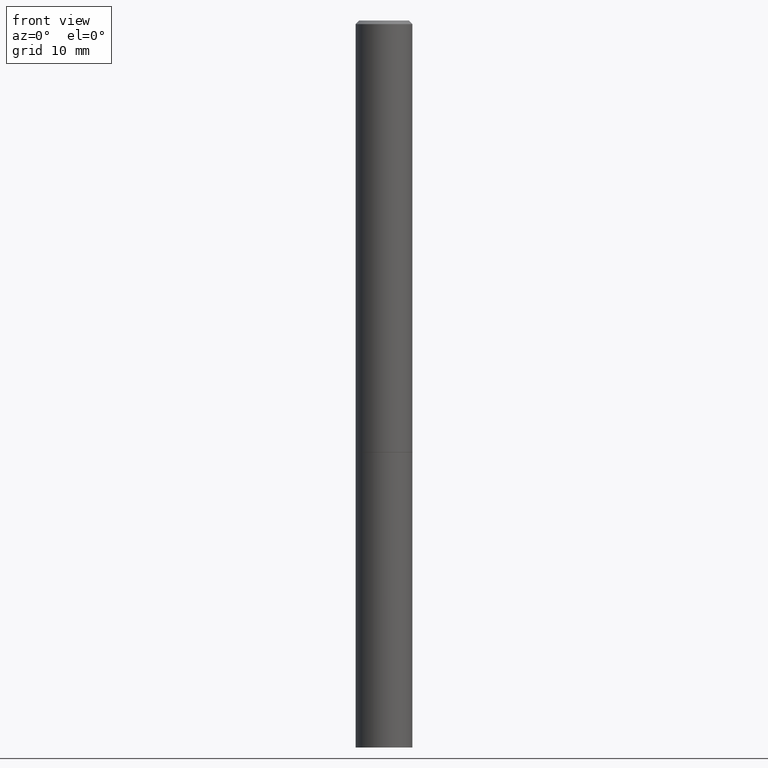
[diagram: clean part render]
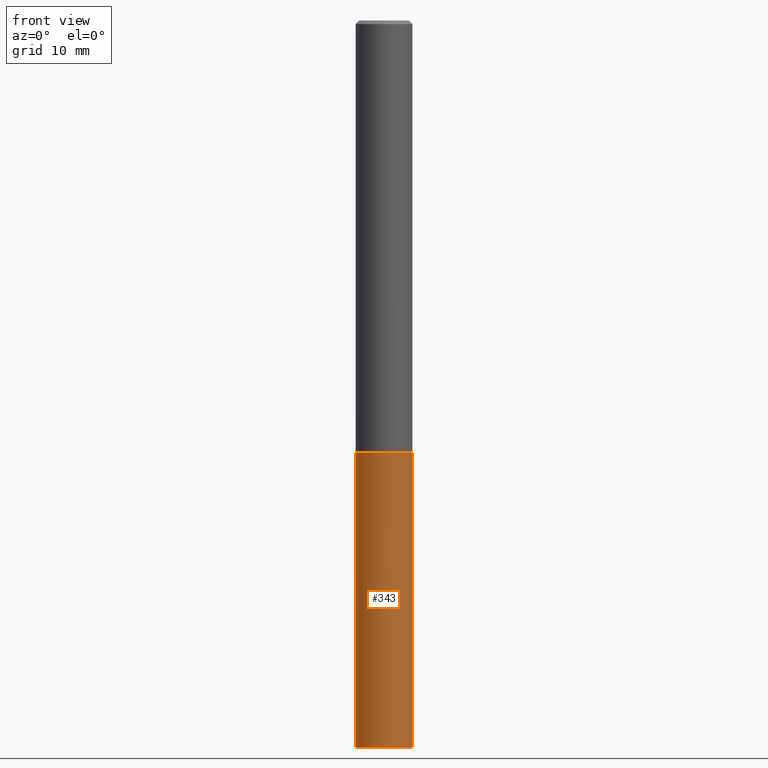
[diagram: same view with one face highlighted and labeled with its STEP entity id]
A machine part, front view. The second image highlights one B-rep face of the part: STEP entity #343.
In plain terms, the highlighted cylindrical surface (edge-blend (fillet) strip) has radius 3.9688 mm, axis along (-0, 0, 1).
Its self-contained STEP definition (entity closure, byte-faithful):
#12 = VECTOR ( 'NONE', #268, 39.37007874015748143 ) ;
#22 = DIRECTION ( 'NONE',  ( 1.000000000000000000, -6.982962677686262766E-15, 0.000000000000000000 ) ) ;
#39 = VERTEX_POINT ( 'NONE', #362 ) ;
#51 = EDGE_CURVE ( 'NONE', #54, #312, #293, .T. ) ;
#54 = VERTEX_POINT ( 'NONE', #209 ) ;
#58 = ORIENTED_EDGE ( 'NONE', *, *, #236, .F. ) ;
#78 = DIRECTION ( 'NONE',  ( -2.445468806185136877E-29, 3.491481338843145188E-15, 1.000000000000000000 ) ) ;
#80 = DIRECTION ( 'NONE',  ( 1.000000000000000000, -6.982962677686266711E-15, 4.876176775795936353E-29 ) ) ;
#82 = VECTOR ( 'NONE', #78, 39.37007874015748143 ) ;
#87 = CYLINDRICAL_SURFACE ( 'NONE', #347, 0.1562500000000000000 ) ;
#93 = CARTESIAN_POINT ( 'NONE',  ( 0.1562500000000000000, -1.091087918388479174E-15, 7.619026212181150377E-30 ) ) ;
#112 = ORIENTED_EDGE ( 'NONE', *, *, #51, .T. ) ;
#139 = DIRECTION ( 'NONE',  ( -2.445468806185136597E-29, 3.491481338843145583E-15, 1.000000000000000000 ) ) ;
#147 = CARTESIAN_POINT ( 'NONE',  ( 0.000000000000000000, 0.000000000000000000, 0.000000000000000000 ) ) ;
#152 = CIRCLE ( 'NONE', #183, 0.1562500000000000000 ) ;
#158 = DIRECTION ( 'NONE',  ( -2.445468806185136597E-29, 3.491481338843145583E-15, 1.000000000000000000 ) ) ;
#161 = CARTESIAN_POINT ( 'NONE',  ( 9.781875224740546387E-29, -1.396592535537258233E-14, -4.000000000000000000 ) ) ;
#164 = CARTESIAN_POINT ( 'NONE',  ( 5.807988414689699417E-29, -8.292268179752470118E-15, -2.375000000000000000 ) ) ;
#176 = ORIENTED_EDGE ( 'NONE', *, *, #297, .F. ) ;
#182 = EDGE_CURVE ( 'NONE', #308, #54, #152, .T. ) ;
#183 = AXIS2_PLACEMENT_3D ( 'NONE', #161, #158, #298 ) ;
#191 = LINE ( 'NONE', #303, #82 ) ;
#194 = CARTESIAN_POINT ( 'NONE',  ( -0.1562500000000000000, -1.001887374293736968E-14, -4.000000000000000000 ) ) ;
#206 = DIRECTION ( 'NONE',  ( -2.445468806185136597E-29, 3.491481338843145583E-15, 1.000000000000000000 ) ) ;
#209 = CARTESIAN_POINT ( 'NONE',  ( 0.1562500000000000000, -1.505701327376106229E-14, -4.000000000000000000 ) ) ;
#236 = EDGE_CURVE ( 'NONE', #39, #312, #354, .T. ) ;
#237 = AXIS2_PLACEMENT_3D ( 'NONE', #164, #139, #22 ) ;
#260 = ORIENTED_EDGE ( 'NONE', *, *, #182, .T. ) ;
#261 = CARTESIAN_POINT ( 'NONE',  ( 0.1562500000000000000, -9.383356098140948502E-15, -2.375000000000000000 ) ) ;
#268 = DIRECTION ( 'NONE',  ( -2.445468806185136877E-29, 3.491481338843145188E-15, 1.000000000000000000 ) ) ;
#285 = FACE_OUTER_BOUND ( 'NONE', #345, .T. ) ;
#293 = LINE ( 'NONE', #93, #12 ) ;
#297 = EDGE_CURVE ( 'NONE', #308, #39, #191, .T. ) ;
#298 = DIRECTION ( 'NONE',  ( 1.000000000000000000, -6.982962677686262766E-15, 0.000000000000000000 ) ) ;
#303 = CARTESIAN_POINT ( 'NONE',  ( -0.1562500000000000000, 1.110223024625156540E-15, -7.685836078523291160E-30 ) ) ;
#308 = VERTEX_POINT ( 'NONE', #194 ) ;
#312 = VERTEX_POINT ( 'NONE', #261 ) ;
#343 = ADVANCED_FACE ( 'NONE', ( #285 ), #87, .T. ) ;
#345 = EDGE_LOOP ( 'NONE', ( #176, #260, #112, #58 ) ) ;
#347 = AXIS2_PLACEMENT_3D ( 'NONE', #147, #206, #80 ) ;
#354 = CIRCLE ( 'NONE', #237, 0.1562500000000000000 ) ;
#362 = CARTESIAN_POINT ( 'NONE',  ( -0.1562500000000000000, -1.001887374293736968E-14, -2.375000000000000000 ) ) ;